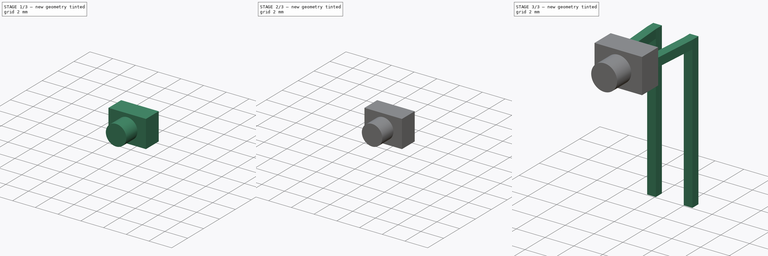
[diagram: build sequence overview — one tinted view per stage of 3, left to right]
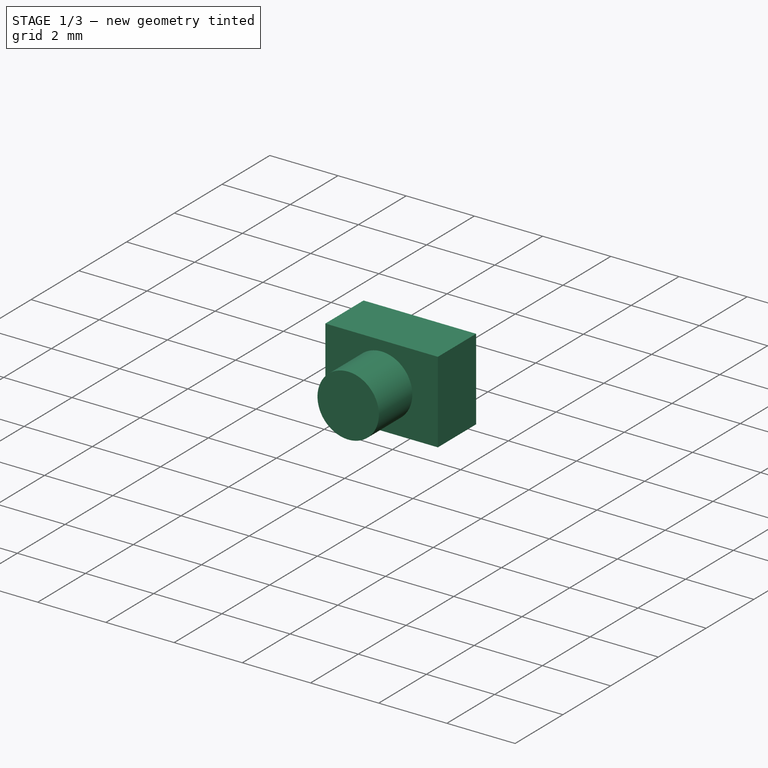
[diagram: stage 1 of 3 — iso view after this stage's code; geometry added in this stage tinted green]
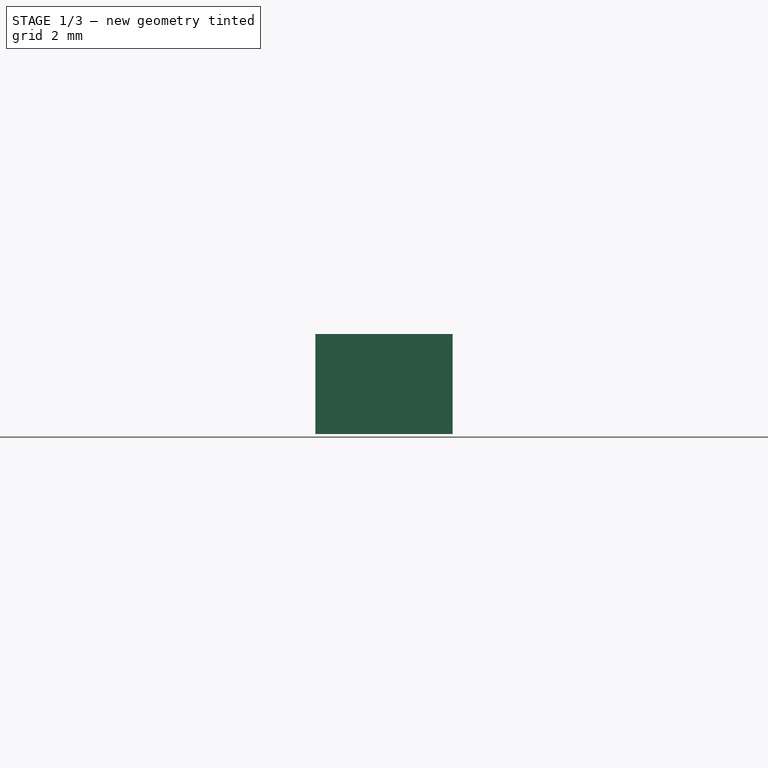
[diagram: stage 1 of 3 — front view after this stage's code; geometry added in this stage tinted green]
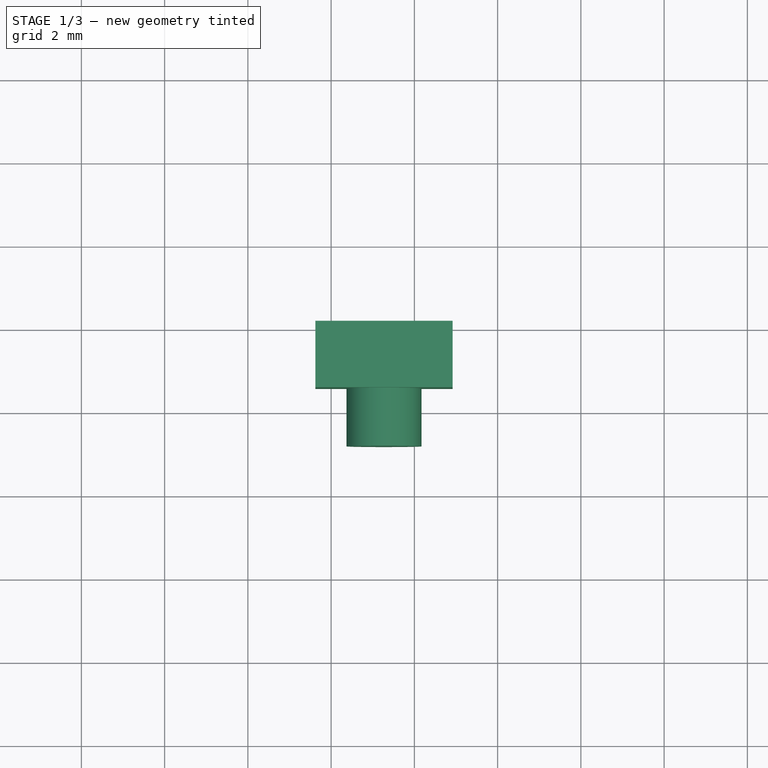
[diagram: stage 1 of 3 — top view after this stage's code; geometry added in this stage tinted green]
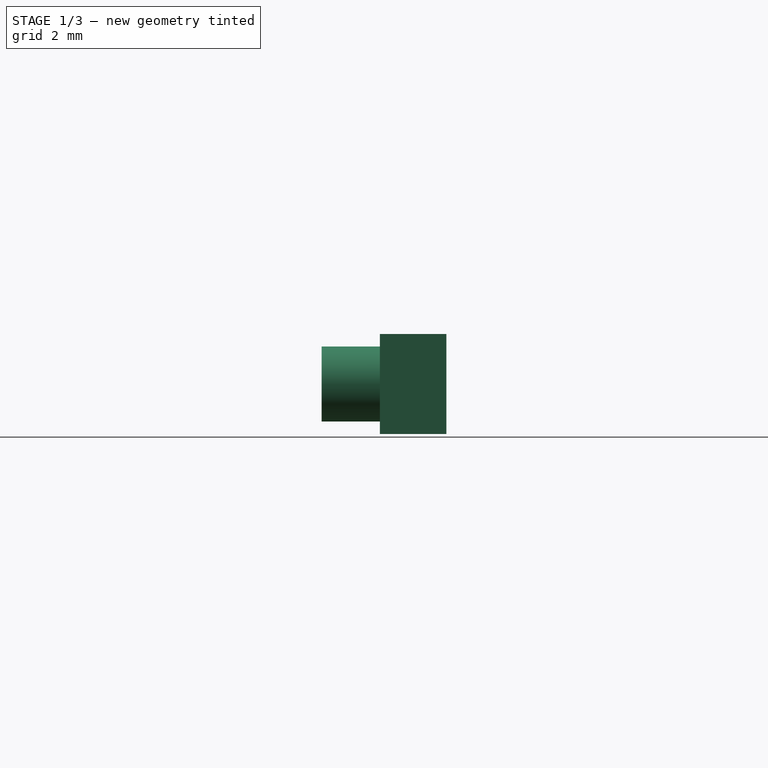
[diagram: stage 1 of 3 — right view after this stage's code; geometry added in this stage tinted green]
FCSTD DOCUMENT  (FreeCAD 0.16R6703 (Git))
Label: LED_D1.8mm_W1.8mm_H2.4mm_Horizontal_O3.81mm_Z8.2mm
License: All rights reserved
LicenseURL: http://en.wikipedia.org/wiki/All_rights_reserved
objects: Sketcher::SketchObject×6, PartDesign::Pad×5, Spreadsheet::Sheet×1, PartDesign::Revolution×1
note: 18 computed .brp shape members not serialized (recipe doc carries the construction recipe); baked Part::Feature solids carry a one-line shape summary decoded from their .brp

FEATURE [Sketcher::SketchObject] Sketch004
  Placement = pos=(0,-3.81,0) rot=(1,0,0;1.5708rad)
  expr: Constraints[10] = Spreadsheet.ledypos - Spreadsheet.H / 2
  expr: Constraints[9] = Spreadsheet.H
  expr: Constraints[8] = Spreadsheet.dledout
  expr: Constraints[11] = (Spreadsheet.dledout - Spreadsheet.RM) / 2
  expr: Placement.Base.y = -Spreadsheet.offsetled
  sketch-geometry (4):
    g0: LineSegment StartX=-0.38 StartY=9.45 StartZ=0 EndX=2.92 EndY=9.45 EndZ=0
    g1: LineSegment StartX=2.92 StartY=9.45 StartZ=0 EndX=2.92 EndY=7.05 EndZ=0
    g2: LineSegment StartX=2.92 StartY=7.05 StartZ=0 EndX=-0.38 EndY=7.05 EndZ=0
    g3: LineSegment StartX=-0.38 StartY=7.05 StartZ=0 EndX=-0.38 EndY=9.45 EndZ=0
  constraints (12):
    c: Coincident(g0,g1)
    c: Coincident(g1,g2)
    c: Coincident(g2,g3)
    c: Coincident(g3,g0)
    c: Horizontal(g0)
    c: Horizontal(g2)
    c: Vertical(g1)
    c: Vertical(g3)
    c: DistanceX(g0,g0) = 3.3
    c: DistanceY(g3,g3) = 2.4
    c: DistanceY(g-1,g2) = 7.05
    c: DistanceX(g2,g-1) = 0.38
FEATURE [PartDesign::Pad] Pad003
  Length = 1.6
  Length2 = 100
  Placement = pos=(0,-3.81,0) rot=(1,0,0;1.5708rad)
  Sketch = -> Sketch004
  Type = 0
  expr: Length = Spreadsheet.wledback
FEATURE [Sketcher::SketchObject] Sketch006
  Placement = pos=(0,-5.41,0) rot=(1,0,0;1.5708rad)
  Support = -> Pad003 [Face6]
  expr: Constraints[2] = Spreadsheet.RM / 2
  expr: Constraints[1] = Spreadsheet.ledypos
  expr: Constraints[0] = Spreadsheet.dled / 2
  sketch-geometry (1):
    g0: Circle CenterX=1.27 CenterY=8.25 CenterZ=0 NormalX=0 NormalY=0 NormalZ=1 Radius=0.9
  constraints (3):
    c: Radius(g0) = 0.9
    c: DistanceY(g-1,g0) = 8.25
    c: DistanceX(g-1,g0) = 1.27
FEATURE [PartDesign::Pad] Pad004
  Length = 1.4
  Length2 = 100
  Placement = pos=(0,-3.81,0) rot=(1,0,0;1.5708rad)
  Sketch = -> Sketch006
  Type = 0
  expr: Length = Spreadsheet.wled - Spreadsheet.wledback
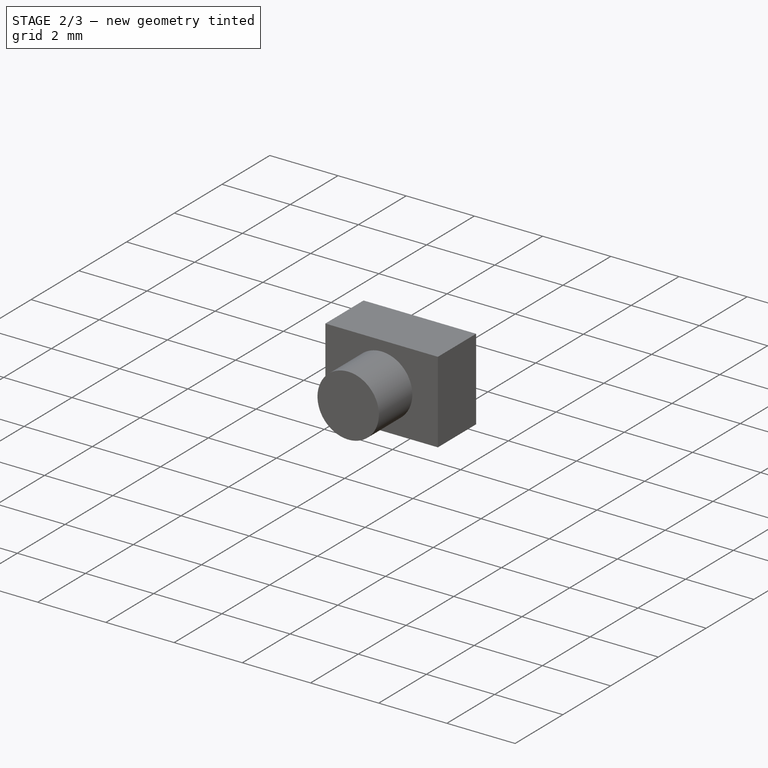
[diagram: stage 2 of 3 — iso view after this stage's code; geometry added in this stage tinted green]
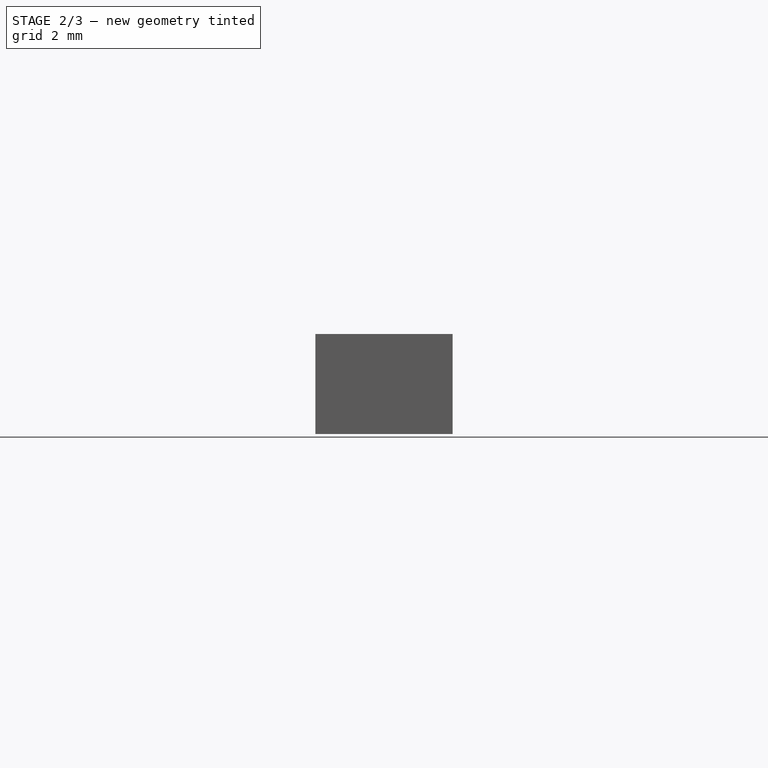
[diagram: stage 2 of 3 — front view after this stage's code; geometry added in this stage tinted green]
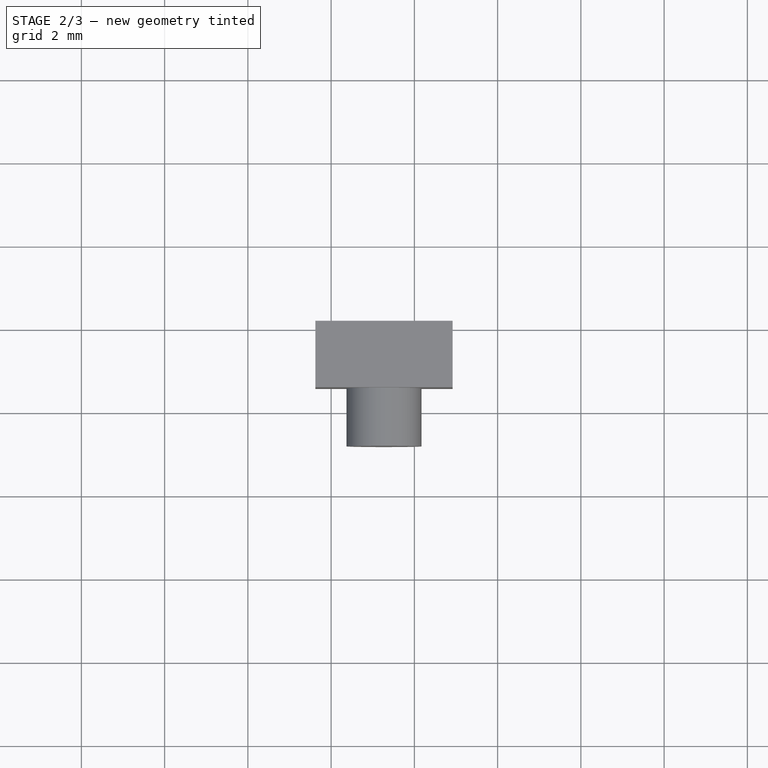
[diagram: stage 2 of 3 — top view after this stage's code; geometry added in this stage tinted green]
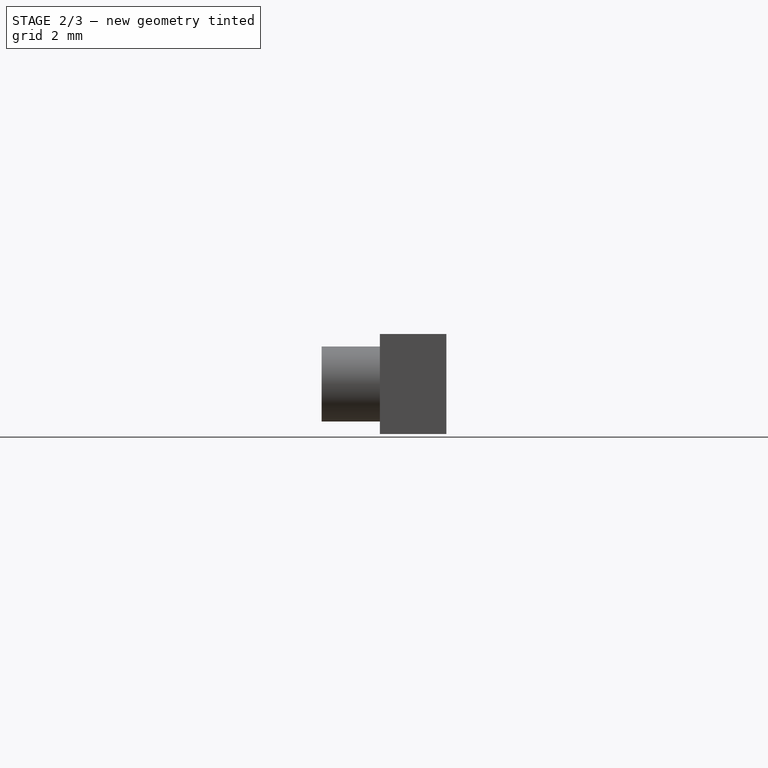
[diagram: stage 2 of 3 — right view after this stage's code; geometry added in this stage tinted green]
FEATURE [Sketcher::SketchObject] Sketch002
  Placement = pos=(0,-4.31,0) rot=(1,0,0;1.5708rad)
  expr: Constraints[10] = Spreadsheet.ledypos - Spreadsheet.d_wire / 2
  expr: Constraints[11] = (Spreadsheet.RM - Spreadsheet.RM) / 2
  expr: Placement.Base.y = -Spreadsheet.offsetled - 0.5
  expr: Constraints[8] = Spreadsheet.RM
  expr: Constraints[9] = Spreadsheet.d_wire
  sketch-geometry (4):
    g0: LineSegment StartX=0 StartY=8.55 StartZ=0 EndX=2.54 EndY=8.55 EndZ=0
    g1: LineSegment StartX=2.54 StartY=8.55 StartZ=0 EndX=2.54 EndY=7.95 EndZ=0
    g2: LineSegment StartX=2.54 StartY=7.95 StartZ=0 EndX=0 EndY=7.95 EndZ=0
    g3: LineSegment StartX=0 StartY=7.95 StartZ=0 EndX=0 EndY=8.55 EndZ=0
  constraints (12):
    c: Coincident(g0,g1)
    c: Coincident(g1,g2)
    c: Coincident(g2,g3)
    c: Coincident(g3,g0)
    c: Horizontal(g0)
    c: Horizontal(g2)
    c: Vertical(g1)
    c: Vertical(g3)
    c: DistanceX(g0,g0) = 2.54
    c: DistanceY(g3,g3) = 0.6
    c: DistanceY(g-1,g2) = 7.95
    c: DistanceX(g-1,g2) = 0
FEATURE [PartDesign::Pad] Pad002
  Length = 1
  Length2 = 100
  Placement = pos=(0,-4.31,0) rot=(1,0,0;1.5708rad)
  Sketch = -> Sketch002
  Type = 0
FEATURE [Sketcher::SketchObject] Sketch005
  Placement = pos=(1.27,0,0) rot=(0.57735,0.57735,0.57735;2.0944rad)
  expr: Constraints[2] = Spreadsheet.offsetled + 1.2
  expr: Placement.Base.x = Spreadsheet.RM / 2
  expr: Constraints[1] = 0.5
  expr: Constraints[3] = Spreadsheet.ledypos
  sketch-geometry (4):
    g0: LineSegment StartX=-5.01 StartY=8.25 StartZ=0 EndX=-5.51 EndY=8.25 EndZ=0
    g1: LineSegment [constr] StartX=-3.9772 StartY=8.25 StartZ=0 EndX=-7.31458 EndY=8.25 EndZ=0
    g2: LineSegment StartX=-5.51 StartY=8.25 StartZ=0 EndX=-5.51 EndY=8.75 EndZ=0
    g3: LineSegment StartX=-5.51 StartY=8.75 StartZ=0 EndX=-5.01 EndY=8.25 EndZ=0
  constraints (11):
    c: Horizontal(g0)
    c: DistanceX(g0,g0) = 0.5
    c: DistanceX(g0,g-1) = 5.01
    c: DistanceY(g-1,g0) = 8.25
    c: PointOnObject(g1,g0)
    c: Horizontal(g1)
    c: Coincident(g2,g0)
    c: Vertical(g2)
    c: Coincident(g3,g2)
    c: Coincident(g3,g0)
    c: Angle(g3,g0) = 0.785398
FEATURE [PartDesign::Revolution] Revolution001
  Angle = 360
  Axis = (0,-3.33738,0)
  Base = (1.27,-3.9772,8.25)
  Placement = pos=(1.27,0,0) rot=(0.57735,0.57735,0.57735;2.0944rad)
  ReferenceAxis = -> Sketch005 [Axis0]
  Reversed = true
  Sketch = -> Sketch005
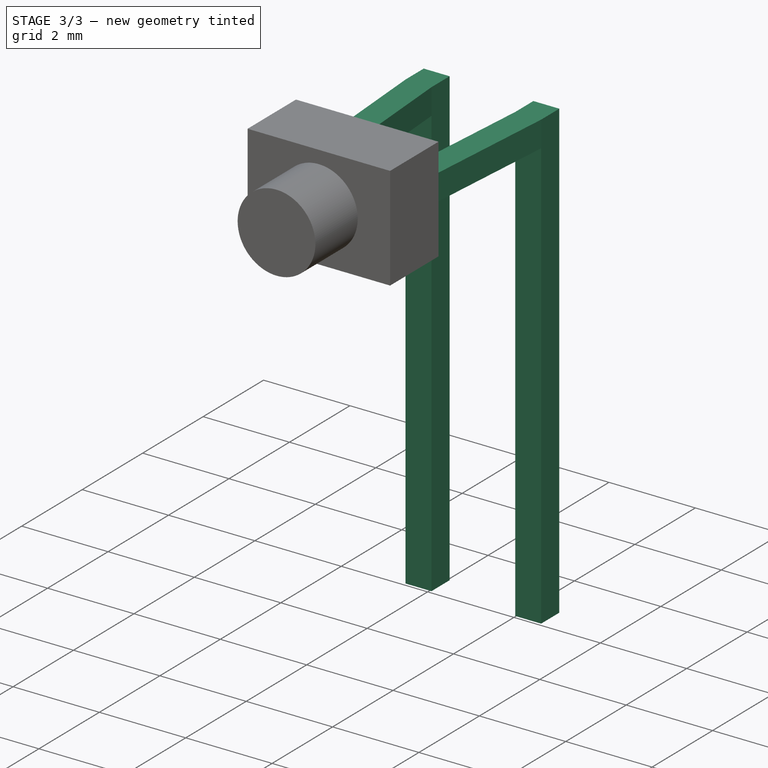
[diagram: stage 3 of 3 — iso view after this stage's code; geometry added in this stage tinted green]
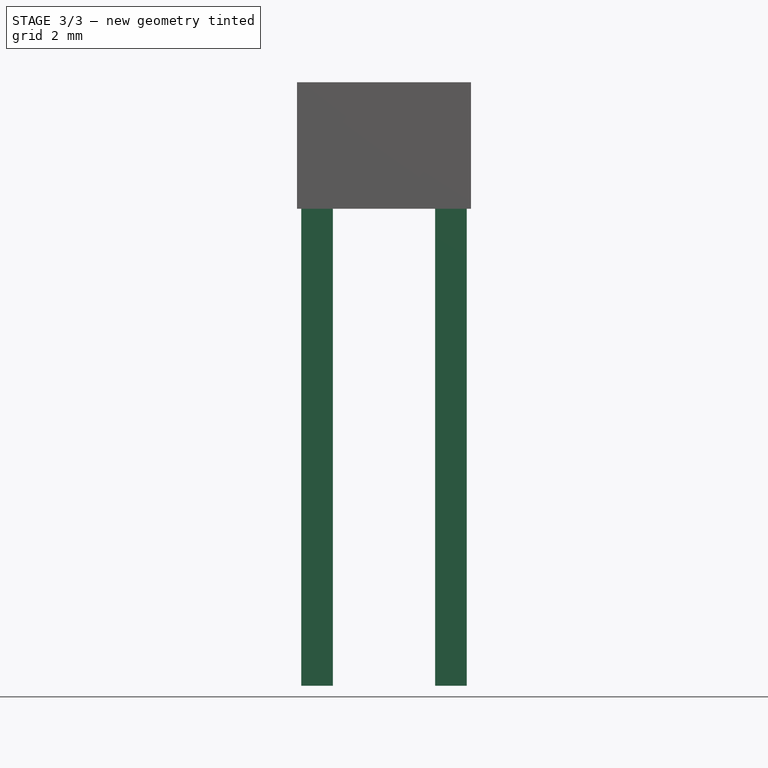
[diagram: stage 3 of 3 — front view after this stage's code; geometry added in this stage tinted green]
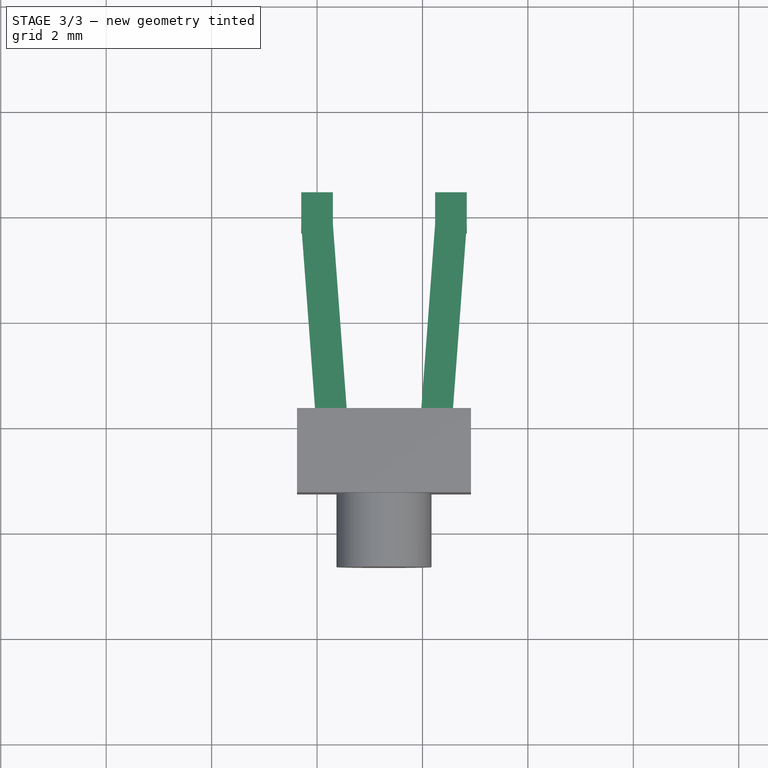
[diagram: stage 3 of 3 — top view after this stage's code; geometry added in this stage tinted green]
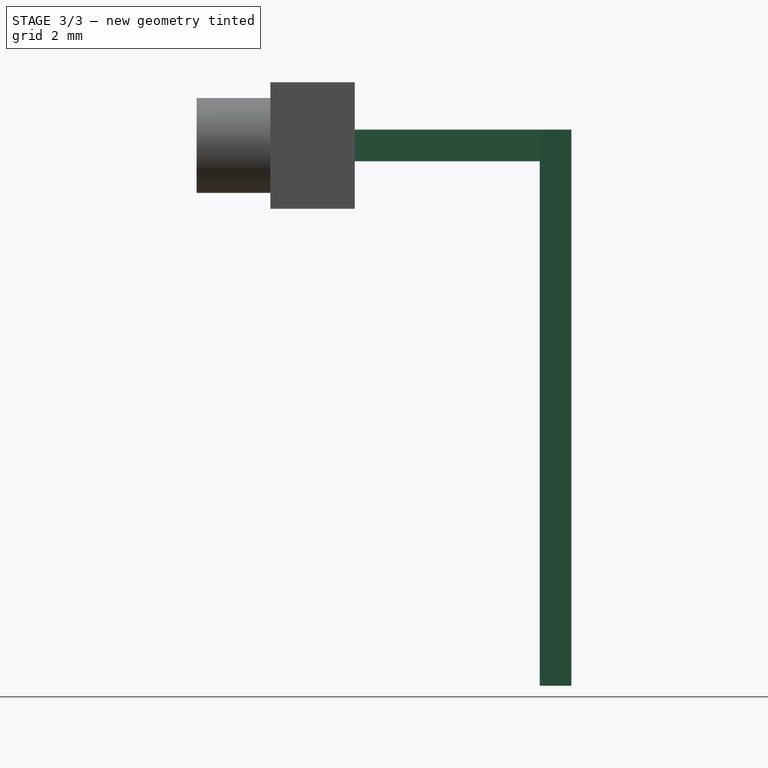
[diagram: stage 3 of 3 — right view after this stage's code; geometry added in this stage tinted green]
FEATURE [Spreadsheet::Sheet] Spreadsheet
  cells = A1=dled; B1(dled)=1.8; A2=dledout; B2(dledout)=3.3; A3=offsetled; B3(offsetled)=3.81; A4=RM; B4(RM)=2.54; A5=d_wire; B5(d_wire)=0.6000000000000001; A6=H; B6(H)=2.4; A7=wled; B7(wled)=3; A8=ledypos; B8(ledypos)=8.25; A9=wledback; B9(wledback)=1.6
FEATURE [Sketcher::SketchObject] Sketch
  expr: Constraints[23] = Spreadsheet.d_wire / 2
  expr: Constraints[22] = Spreadsheet.d_wire / 2
  expr: Constraints[21] = Spreadsheet.d_wire
  expr: Constraints[20] = Spreadsheet.d_wire
  expr: Constraints[16] = Spreadsheet.RM
  sketch-geometry (8):
    g0: LineSegment StartX=0.3 StartY=0.3 StartZ=0 EndX=-0.3 EndY=0.3 EndZ=0
    g1: LineSegment StartX=-0.3 StartY=0.3 StartZ=0 EndX=-0.3 EndY=-0.3 EndZ=0
    g2: LineSegment StartX=-0.3 StartY=-0.3 StartZ=0 EndX=0.3 EndY=-0.3 EndZ=0
    g3: LineSegment StartX=0.3 StartY=-0.3 StartZ=0 EndX=0.3 EndY=0.3 EndZ=0
    g4: LineSegment StartX=2.84 StartY=0.3 StartZ=0 EndX=2.24 EndY=0.3 EndZ=0
    g5: LineSegment StartX=2.24 StartY=0.3 StartZ=0 EndX=2.24 EndY=-0.3 EndZ=0
    g6: LineSegment StartX=2.24 StartY=-0.3 StartZ=0 EndX=2.84 EndY=-0.3 EndZ=0
    g7: LineSegment StartX=2.84 StartY=-0.3 StartZ=0 EndX=2.84 EndY=0.3 EndZ=0
  constraints (24):
    c: Coincident(g0,g1)
    c: Coincident(g1,g2)
    c: Coincident(g2,g3)
    c: Coincident(g3,g0)
    c: Horizontal(g0)
    c: Horizontal(g2)
    c: Vertical(g1)
    c: Vertical(g3)
    c: Coincident(g4,g5)
    c: Coincident(g5,g6)
    c: Coincident(g6,g7)
    c: Coincident(g7,g4)
    c: Horizontal(g4)
    c: Horizontal(g6)
    c: Vertical(g5)
    c: Vertical(g7)
    c: DistanceX(g0,g4) = 2.54
    c: Equal(g0,g4)
    c: DistanceY(g4,g0) = 0
    c: Equal(g3,g7)
    c: DistanceX(g0,g0) = 0.6
    c: DistanceY(g1,g1) = 0.6
    c: DistanceX(g0,g-1) = 0.3
    c: DistanceY(g-1,g0) = 0.3
FEATURE [PartDesign::Pad] Pad
  Length = 7.95
  Length2 = 2
  Sketch = -> Sketch
  Type = 4
  expr: Length = Spreadsheet.ledypos - Spreadsheet.d_wire / 2
FEATURE [Sketcher::SketchObject] Sketch001
  Placement = pos=(0,0,7.95) rot=(0,0,1;0rad)
  expr: Constraints[34] = Spreadsheet.d_wire / 2 + (Spreadsheet.RM - Spreadsheet.RM) / 2
  expr: Constraints[32] = Spreadsheet.RM - 2 * Spreadsheet.d_wire
  expr: Constraints[3] = Spreadsheet.d_wire
  expr: Constraints[15] = Spreadsheet.d_wire
  expr: Constraints[5] = Spreadsheet.d_wire / 2
  expr: Placement.Base.z = Spreadsheet.ledypos - Spreadsheet.d_wire / 2
  expr: Constraints[6] = Spreadsheet.RM - Spreadsheet.d_wire
  expr: Constraints[35] = Spreadsheet.offsetled + 0.5
  expr: Constraints[4] = Spreadsheet.d_wire / 2
  expr: Constraints[22] = Spreadsheet.RM + Spreadsheet.d_wire
  expr: Constraints[31] = Spreadsheet.RM
  sketch-geometry (12):
    g0: LineSegment StartX=0.3 StartY=0.3 StartZ=0 EndX=-0.3 EndY=0.3 EndZ=0
    g1: LineSegment StartX=2.84 StartY=0.3 StartZ=0 EndX=2.24 EndY=0.3 EndZ=0
    g2: LineSegment StartX=-0.3 StartY=0.3 StartZ=0 EndX=-0.3 EndY=-0.3 EndZ=0
    g3: LineSegment StartX=0.3 StartY=0.3 StartZ=0 EndX=0.3 EndY=-0.3 EndZ=0
    g4: LineSegment StartX=0.3 StartY=-0.3 StartZ=0 EndX=0.6 EndY=-4.31 EndZ=0
    g5: LineSegment StartX=-0.3 StartY=-0.3 StartZ=0 EndX=0 EndY=-4.31 EndZ=0
    g6: LineSegment StartX=0 StartY=-4.31 StartZ=0 EndX=0.6 EndY=-4.31 EndZ=0
    g7: LineSegment StartX=2.24 StartY=0.3 StartZ=0 EndX=2.24 EndY=-0.3 EndZ=0
    g8: LineSegment StartX=2.84 StartY=0.3 StartZ=0 EndX=2.84 EndY=-0.3 EndZ=0
    g9: LineSegment StartX=2.24 StartY=-0.3 StartZ=0 EndX=1.94 EndY=-4.31 EndZ=0
    g10: LineSegment StartX=2.84 StartY=-0.3 StartZ=0 EndX=2.54 EndY=-4.31 EndZ=0
    g11: LineSegment StartX=2.54 StartY=-4.31 StartZ=0 EndX=1.94 EndY=-4.31 EndZ=0
  constraints (36):
    c: Horizontal(g0)
    c: Horizontal(g1)
    c: DistanceY(g1,g0) = 0
    c: DistanceX(g0,g0) = 0.6
    c: DistanceX(g0,g-1) = 0.3
    c: DistanceY(g-1,g0) = 0.3
    c: DistanceX(g0,g1) = 1.94
    c: Coincident(g2,g0)
    c: Vertical(g2)
    c: Coincident(g3,g0)
    c: Vertical(g3)
    c: Coincident(g6,g5)
    c: Coincident(g6,g4)
    c: Horizontal(g6)
    c: Coincident(g3,g4)
    c: DistanceY(g2,g2) = 0.6
    c: Coincident(g5,g2)
    c: Equal(g3,g2)
    c: Coincident(g7,g1)
    c: Vertical(g7)
    c: Coincident(g8,g1)
    c: Vertical(g8)
    c: DistanceX(g0,g1) = 3.14
    c: DistanceY(g3,g7) = 0
    c: DistanceY(g2,g8) = 0
    c: Coincident(g9,g7)
    c: Coincident(g10,g8)
    c: Coincident(g11,g10)
    c: Coincident(g11,g9)
    c: Horizontal(g11)
    c: Equal(g11,g1)
    c: DistanceX(g5,g10) = 2.54
    c: DistanceX(g4,g9) = 1.34
    c: DistanceY(g9,g4) = 0
    c: DistanceX(g2,g5) = 0.3
    c: DistanceY(g5,g-1) = 4.31
FEATURE [PartDesign::Pad] Pad001
  Length = 0.6
  Length2 = 100
  Placement = pos=(0,0,7.95) rot=(0,0,1;0rad)
  Sketch = -> Sketch001
  Type = 0
  expr: Length = Spreadsheet.d_wire
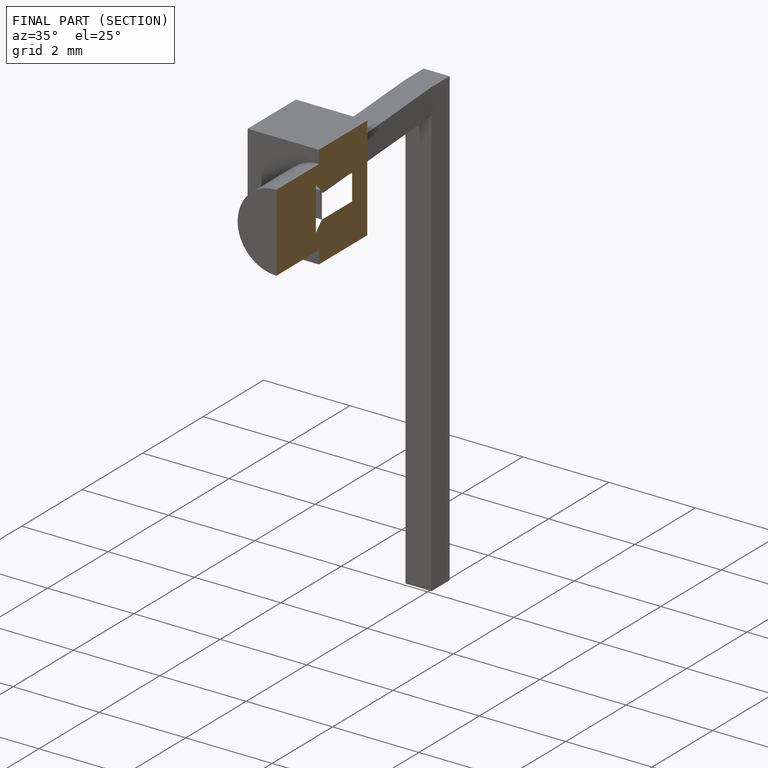
[diagram: finished part — half-section view (interior)]
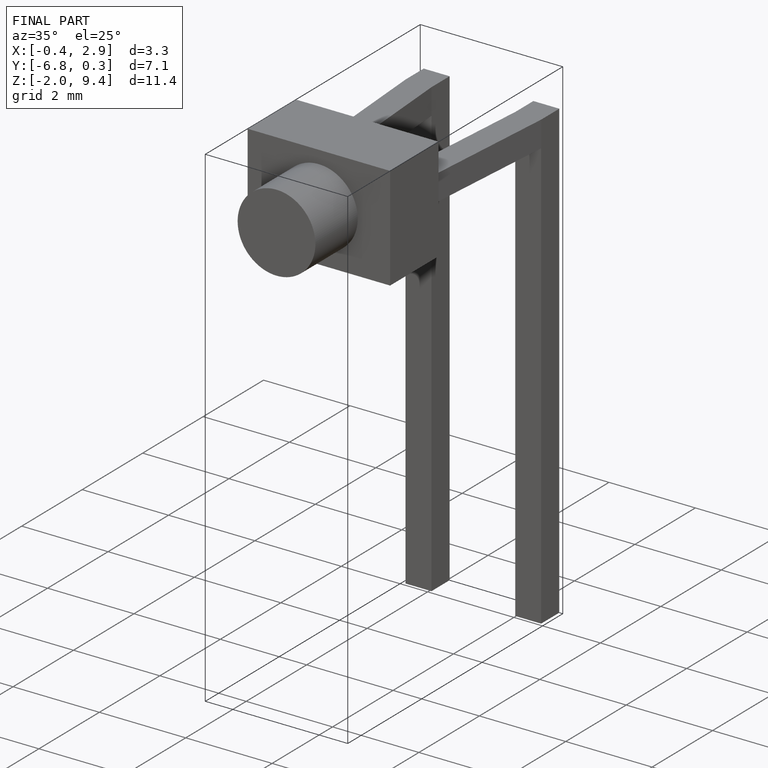
[diagram: finished part — iso view with bounding-box wireframe]
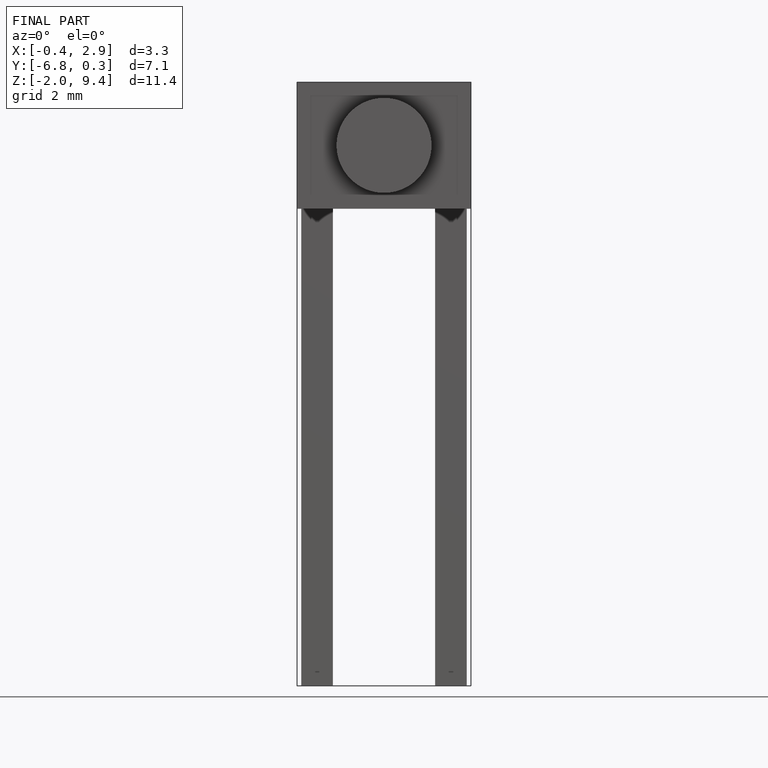
[diagram: finished part — front view with bounding-box wireframe]
